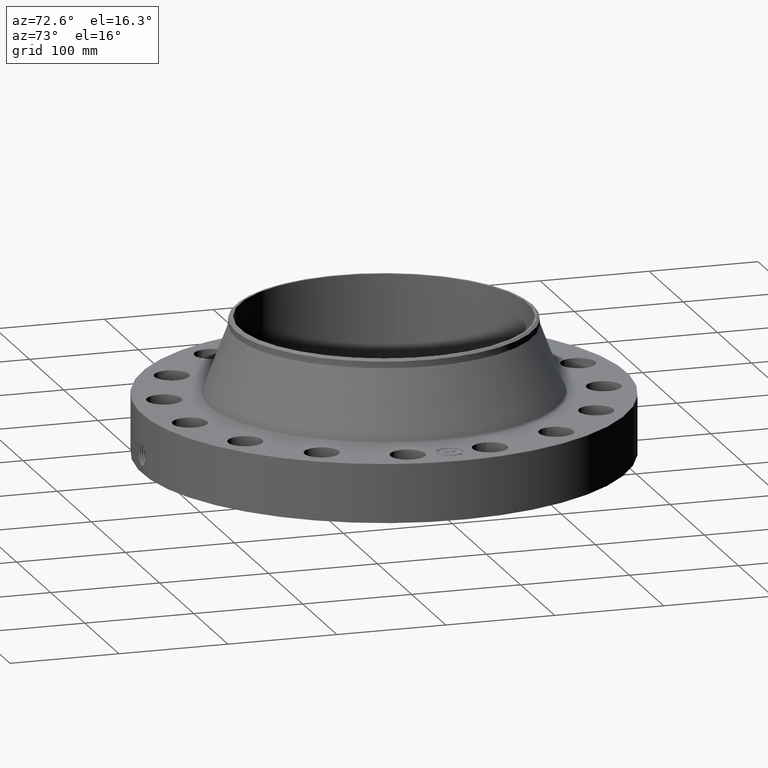
[diagram: clean part render]
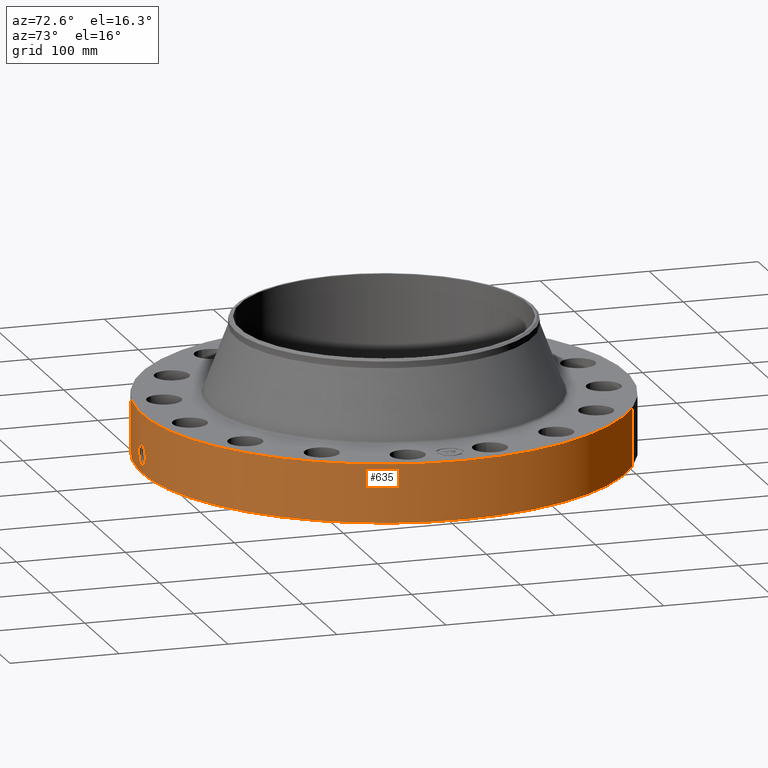
[diagram: same view with one face highlighted and labeled with its STEP entity id]
A machine part, auxiliary view. The second image highlights one B-rep face of the part: STEP entity #635.
In plain terms, the highlighted cylindrical surface (partial cylindrical patch) has radius 222.25 mm, axis along (0, 0, -1).
Its self-contained STEP definition (entity closure, byte-faithful):
#38=AXIS2_PLACEMENT_3D('Cylinder Axis2P3D',#35,#36,#37) ;
#169=AXIS2_PLACEMENT_3D('Circle Axis2P3D',#167,#168,$) ;
#539=AXIS2_PLACEMENT_3D('Circle Axis2P3D',#537,#538,$) ;
#35=CARTESIAN_POINT('Axis2P3D Location',(0.,0.,2.69000000001)) ;
#44=CARTESIAN_POINT('Vertex',(-4.1949734628,-7.67884741657,0.250000000001)) ;
#46=CARTESIAN_POINT('Vertex',(4.1949734628,7.67884741657,0.250000000001)) ;
#49=CARTESIAN_POINT('Line Origine',(-4.1949734628,-7.67884741657,1.31000000001)) ;
#53=CARTESIAN_POINT('Vertex',(-4.1949734628,-7.67884741657,2.37000000001)) ;
#60=CARTESIAN_POINT('Vertex',(4.1949734628,7.67884741657,2.37000000001)) ;
#63=CARTESIAN_POINT('Line Origine',(4.1949734628,7.67884741657,1.31000000001)) ;
#167=CARTESIAN_POINT('Axis2P3D Location',(0.,0.,0.250000000001)) ;
#537=CARTESIAN_POINT('Axis2P3D Location',(0.,0.,2.37000000001)) ;
#549=CARTESIAN_POINT('Control Point',(0.0581089625087,-8.74980704639,1.28931263407)) ;
#550=CARTESIAN_POINT('Control Point',(0.0391512505061,-8.74993294779,1.29247036248)) ;
#551=CARTESIAN_POINT('Control Point',(0.0199353917039,-8.74999839758,1.29407954697)) ;
#552=CARTESIAN_POINT('Control Point',(0.000716211350647,-8.74999997072,1.29411849893)) ;
#553=CARTESIAN_POINT('Vertex',(0.0580953077663,-8.74980738873,1.28931519353)) ;
#555=CARTESIAN_POINT('Vertex',(0.000716087123925,-8.74999997073,1.29411850938)) ;
#559=CARTESIAN_POINT('Control Point',(0.0580952083203,-8.74980713772,1.28931463772)) ;
#560=CARTESIAN_POINT('Control Point',(0.0974883504092,-8.74954558307,1.28448275707)) ;
#561=CARTESIAN_POINT('Control Point',(0.136130062224,-8.749012969,1.27246972712)) ;
#562=CARTESIAN_POINT('Control Point',(0.171610206376,-8.74831697744,1.25416185771)) ;
#563=CARTESIAN_POINT('Vertex',(0.171610206376,-8.74831697744,1.25416185771)) ;
#567=CARTESIAN_POINT('Control Point',(0.0302669452421,-8.74994765199,0.531133858009)) ;
#568=CARTESIAN_POINT('Control Point',(0.0865126332149,-8.74975309253,0.538286206309)) ;
#569=CARTESIAN_POINT('Control Point',(0.141163784551,-8.74911210098,0.555899644829)) ;
#570=CARTESIAN_POINT('Control Point',(0.191479474416,-8.74808366127,0.583467507021)) ;
#571=CARTESIAN_POINT('Control Point',(0.264585210987,-8.74612690907,0.642883900457)) ;
#572=CARTESIAN_POINT('Control Point',(0.316528471726,-8.74430507465,0.719208877466)) ;
#573=CARTESIAN_POINT('Control Point',(0.333583708522,-8.74365536413,0.751880832695)) ;
#574=CARTESIAN_POINT('Control Point',(0.36897503299,-8.74224702288,0.844035268725)) ;
#575=CARTESIAN_POINT('Control Point',(0.375098714793,-8.74194353724,0.942677587516)) ;
#576=CARTESIAN_POINT('Control Point',(0.366946053493,-8.7423150234,1.00432648187)) ;
#577=CARTESIAN_POINT('Control Point',(0.333642919142,-8.74374182171,1.10228712871)) ;
#578=CARTESIAN_POINT('Control Point',(0.270966418034,-8.74586349314,1.18272418423)) ;
#579=CARTESIAN_POINT('Control Point',(0.241231340863,-8.74676440562,1.21147018011)) ;
#580=CARTESIAN_POINT('Control Point',(0.207766138582,-8.74760772936,1.23550527931)) ;
#581=CARTESIAN_POINT('Control Point',(0.171610206376,-8.74831697744,1.25416185771)) ;
#582=CARTESIAN_POINT('Vertex',(0.0302669452421,-8.74994765199,0.531133858009)) ;
#586=CARTESIAN_POINT('Control Point',(0.0302669452421,-8.74994765199,0.531133858009)) ;
#587=CARTESIAN_POINT('Control Point',(0.020172125313,-8.74998257099,0.530866678197)) ;
#588=CARTESIAN_POINT('Control Point',(0.0100722732255,-8.75000000318,0.530947102164)) ;
#589=CARTESIAN_POINT('Control Point',(-2.72878354645E-006,-8.75000000003,0.531374667805)) ;
#590=CARTESIAN_POINT('Vertex',(-2.72878354107E-006,-8.75000000003,0.531374667805)) ;
#594=CARTESIAN_POINT('Control Point',(-0.19328241765,-8.74786499139,0.58620888473)) ;
#595=CARTESIAN_POINT('Control Point',(-0.149259962904,-8.74883765918,0.561336698202)) ;
#596=CARTESIAN_POINT('Control Point',(-0.101168835305,-8.74960564367,0.543535968948)) ;
#597=CARTESIAN_POINT('Control Point',(-0.0508246751805,-8.74999998419,0.533531464396)) ;
#598=CARTESIAN_POINT('Control Point',(-2.72878354646E-006,-8.75000000003,0.531374667805)) ;
#599=CARTESIAN_POINT('Vertex',(-0.19328241765,-8.74786499139,0.58620888473)) ;
#603=CARTESIAN_POINT('Control Point',(-0.19328241765,-8.74786499139,0.58620888473)) ;
#604=CARTESIAN_POINT('Control Point',(-0.222320018134,-8.74722341112,0.602614798405)) ;
#605=CARTESIAN_POINT('Control Point',(-0.249702852766,-8.74649784976,0.621904373374)) ;
#606=CARTESIAN_POINT('Control Point',(-0.275025900348,-8.74572453906,0.643907791674)) ;
#607=CARTESIAN_POINT('Control Point',(-0.34195985152,-8.74345928948,0.715550689358)) ;
#608=CARTESIAN_POINT('Control Point',(-0.384721494831,-8.74157999933,0.805221661228)) ;
#609=CARTESIAN_POINT('Control Point',(-0.399824078765,-8.74084549763,0.869596656251)) ;
#610=CARTESIAN_POINT('Control Point',(-0.400741236163,-8.74084616963,0.9839009448)) ;
#611=CARTESIAN_POINT('Control Point',(-0.360682761576,-8.74259093648,1.08862858366)) ;
#612=CARTESIAN_POINT('Control Point',(-0.336434934168,-8.74359787656,1.13009590887)) ;
#613=CARTESIAN_POINT('Control Point',(-0.267541246863,-8.74613174571,1.21398892354)) ;
#614=CARTESIAN_POINT('Control Point',(-0.174601876464,-8.74851033483,1.26870826517)) ;
#615=CARTESIAN_POINT('Control Point',(-0.117427738884,-8.74951483398,1.2885835666)) ;
#616=CARTESIAN_POINT('Control Point',(-0.0582715845187,-8.75000017228,1.29701111921)) ;
#617=CARTESIAN_POINT('Control Point',(2.58579355166E-005,-8.75,1.29415298432)) ;
#618=CARTESIAN_POINT('Vertex',(2.58579355355E-005,-8.75,1.29415298432)) ;
#622=CARTESIAN_POINT('Control Point',(0.000716087113733,-8.74999997073,1.29411850936)) ;
#623=CARTESIAN_POINT('Control Point',(0.000370996570185,-8.74999999898,1.2941360633)) ;
#624=CARTESIAN_POINT('Control Point',(2.58579413606E-005,-8.75,1.29415298432)) ;
#36=DIRECTION('Axis2P3D Direction',(0.,0.,-0.0393700787402)) ;
#37=DIRECTION('Axis2P3D XDirection',(0.0188750212049,0.0345504945626,0.)) ;
#50=DIRECTION('Vector Direction',(0.,0.,-0.0393700787402)) ;
#64=DIRECTION('Vector Direction',(0.,0.,-0.0393700787402)) ;
#168=DIRECTION('Axis2P3D Direction',(0.,0.,-0.0393700787402)) ;
#538=DIRECTION('Axis2P3D Direction',(0.,0.,-0.0393700787402)) ;
#51=VECTOR('Line Direction',#50,0.0393700787402) ;
#65=VECTOR('Line Direction',#64,0.0393700787402) ;
#543=ORIENTED_EDGE('',*,*,#171,.F.) ;
#544=ORIENTED_EDGE('',*,*,#67,.T.) ;
#545=ORIENTED_EDGE('',*,*,#541,.T.) ;
#546=ORIENTED_EDGE('',*,*,#55,.F.) ;
#627=ORIENTED_EDGE('',*,*,#557,.F.) ;
#628=ORIENTED_EDGE('',*,*,#565,.T.) ;
#629=ORIENTED_EDGE('',*,*,#584,.F.) ;
#630=ORIENTED_EDGE('',*,*,#592,.T.) ;
#631=ORIENTED_EDGE('',*,*,#601,.F.) ;
#632=ORIENTED_EDGE('',*,*,#620,.T.) ;
#633=ORIENTED_EDGE('',*,*,#625,.F.) ;
#634=FACE_BOUND('',#626,.T.) ;
#635=ADVANCED_FACE('PartBody',(#547,#634),#39,.T.) ;
#548=B_SPLINE_CURVE_WITH_KNOTS('',3,(#549,#550,#551,#552),.UNSPECIFIED.,.F.,.U.,(4,4),(4.38916387637,6.52135751777),.UNSPECIFIED.) ;
#558=B_SPLINE_CURVE_WITH_KNOTS('',3,(#559,#560,#561,#562),.UNSPECIFIED.,.F.,.U.,(4,4),(0.,4.4594183468),.UNSPECIFIED.) ;
#566=B_SPLINE_CURVE_WITH_KNOTS('',5,(#567,#568,#569,#570,#571,#572,#573,#574,#575,#576,#577,#578,#579,#580,#581),.UNSPECIFIED.,.F.,.U.,(6,3,3,3,6),(0.,9.85389268884,16.4310812014,27.594159927,35.1680876183),.UNSPECIFIED.) ;
#585=B_SPLINE_CURVE_WITH_KNOTS('',3,(#586,#587,#588,#589),.UNSPECIFIED.,.F.,.U.,(4,4),(0.,1.05295553536),.UNSPECIFIED.) ;
#593=B_SPLINE_CURVE_WITH_KNOTS('',4,(#594,#595,#596,#597,#598),.UNSPECIFIED.,.F.,.U.,(5,5),(0.,7.0819836813),.UNSPECIFIED.) ;
#602=B_SPLINE_CURVE_WITH_KNOTS('',5,(#603,#604,#605,#606,#607,#608,#609,#610,#611,#612,#613,#614,#615,#616,#617),.UNSPECIFIED.,.F.,.U.,(6,3,3,3,6),(0.,5.83917378973,17.1007627835,25.5637752972,36.4607761803),.UNSPECIFIED.) ;
#621=B_SPLINE_CURVE_WITH_KNOTS('',2,(#622,#623,#624),.UNSPECIFIED.,.F.,.U.,(3,3),(1.04631464727,1.07212007524),.UNSPECIFIED.) ;
#170=CIRCLE('generated circle',#169,8.75000000003) ;
#540=CIRCLE('generated circle',#539,8.75000000003) ;
#39=CYLINDRICAL_SURFACE('generated cylinder',#38,8.75000000003) ;
#55=EDGE_CURVE('',#45,#54,#52,.F.) ;
#67=EDGE_CURVE('',#47,#61,#66,.F.) ;
#171=EDGE_CURVE('',#47,#45,#170,.T.) ;
#541=EDGE_CURVE('',#61,#54,#540,.T.) ;
#557=EDGE_CURVE('',#554,#556,#548,.T.) ;
#565=EDGE_CURVE('',#554,#564,#558,.T.) ;
#584=EDGE_CURVE('',#583,#564,#566,.T.) ;
#592=EDGE_CURVE('',#583,#591,#585,.T.) ;
#601=EDGE_CURVE('',#600,#591,#593,.T.) ;
#620=EDGE_CURVE('',#600,#619,#602,.T.) ;
#625=EDGE_CURVE('',#556,#619,#621,.T.) ;
#542=EDGE_LOOP('',(#543,#544,#545,#546)) ;
#626=EDGE_LOOP('',(#627,#628,#629,#630,#631,#632,#633)) ;
#547=FACE_OUTER_BOUND('',#542,.T.) ;
#52=LINE('Line',#49,#51) ;
#66=LINE('Line',#63,#65) ;
#45=VERTEX_POINT('',#44) ;
#47=VERTEX_POINT('',#46) ;
#54=VERTEX_POINT('',#53) ;
#61=VERTEX_POINT('',#60) ;
#554=VERTEX_POINT('',#553) ;
#556=VERTEX_POINT('',#555) ;
#564=VERTEX_POINT('',#563) ;
#583=VERTEX_POINT('',#582) ;
#591=VERTEX_POINT('',#590) ;
#600=VERTEX_POINT('',#599) ;
#619=VERTEX_POINT('',#618) ;